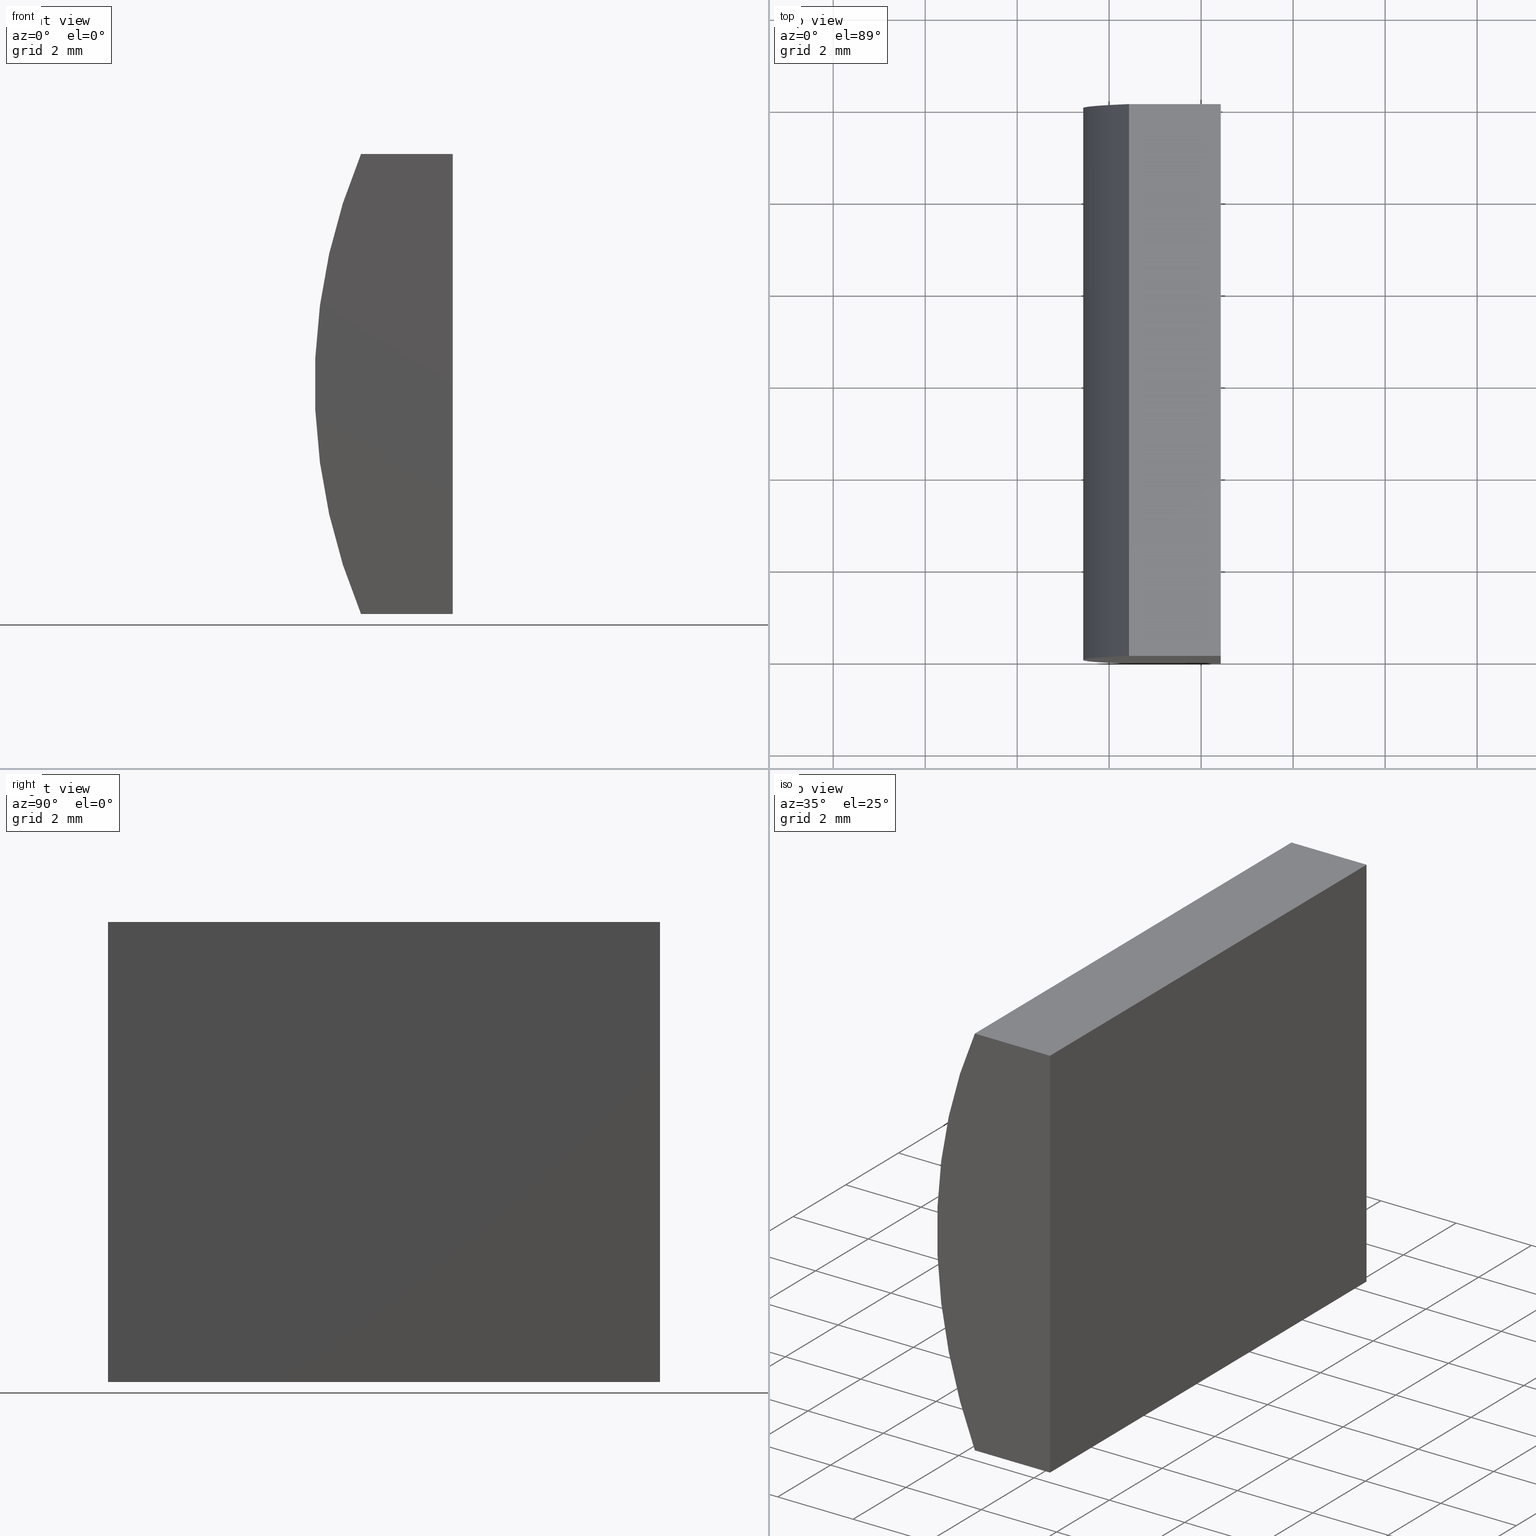
[diagram: canonical four-view strip — front | top / right | iso, engineering-drawing reading convention]
A machine part, canonical four-view strip (front | top / right | iso — engineering-drawing reading convention). The complete STEP part file that produces these views, byte-faithful:
ISO-10303-21;
HEADER;
FILE_DESCRIPTION (( 'STEP AP214' ),
    '1' );
FILE_NAME ('155015.STEP',
    '2019-06-17T02:02:05',
    ( 'user' ),
    ( '΢���й�' ),
    'SwSTEP 2.0',
    'SolidWorks 2016',
    '' );
FILE_SCHEMA (( 'AUTOMOTIVE_DESIGN' ));
ENDSEC;

DATA;
#1 = ORIENTED_EDGE ( 'NONE', *, *, #202, .T. ) ;
#2 = CARTESIAN_POINT ( 'NONE',  ( -5.574795665148736900, 12.00000000000000000, -5.000000000000001800 ) ) ;
#3 = DIRECTION ( 'NONE',  ( -1.000000000000000000, -0.0000000000000000000, 8.699145040184285100E-016 ) ) ;
#4 = DIRECTION ( 'NONE',  ( 0.0000000000000000000, 1.000000000000000000, 0.0000000000000000000 ) ) ;
#5 = DIRECTION ( 'NONE',  ( 0.0000000000000000000, 1.000000000000000000, 0.0000000000000000000 ) ) ;
#6 = LINE ( 'NONE', #69, #27 ) ;
#7 = ADVANCED_FACE ( 'NONE', ( #66 ), #192, .T. ) ;
#8 = CARTESIAN_POINT ( 'NONE',  ( -5.574795665148736900, 0.0000000000000000000, -5.000000000000001800 ) ) ;
#9 = EDGE_LOOP ( 'NONE', ( #55, #1, #45, #79 ) ) ;
#10 = ORIENTED_EDGE ( 'NONE', *, *, #17, .F. ) ;
#11 = AXIS2_PLACEMENT_3D ( 'NONE', #204, #149, #57 ) ;
#12 = ORIENTED_EDGE ( 'NONE', *, *, #118, .T. ) ;
#13 = EDGE_CURVE ( 'NONE', #37, #170, #199, .T. ) ;
#14 = LINE ( 'NONE', #136, #195 ) ;
#15 = CARTESIAN_POINT ( 'NONE',  ( -7.568926660739147200, 12.00000000000000000, -5.000000000000000000 ) ) ;
#16 = MECHANICAL_DESIGN_GEOMETRIC_PRESENTATION_REPRESENTATION (  '', ( #39 ), #191 ) ;
#17 = EDGE_CURVE ( 'NONE', #164, #147, #104, .T. ) ;
#18 = COLOUR_RGB ( '',1.000000000000000000, 1.000000000000000000, 1.000000000000000000 ) ;
#19 = VECTOR ( 'NONE', #152, 1000.000000000000000 ) ;
#20 = DIRECTION ( 'NONE',  ( -3.469446951953613700E-016, -0.0000000000000000000, -1.000000000000000000 ) ) ;
#21 = PRODUCT_DEFINITION_FORMATION_WITH_SPECIFIED_SOURCE ( '�κ�', '', #145, .NOT_KNOWN. ) ;
#22 = DIRECTION ( 'NONE',  ( 3.469446951953613700E-016, 0.0000000000000000000, 1.000000000000000000 ) ) ;
#23 = CARTESIAN_POINT ( 'NONE',  ( -5.574795665148736900, 12.00000000000000000, -5.000000000000001800 ) ) ;
#24 = LINE ( 'NONE', #43, #133 ) ;
#25 = ADVANCED_FACE ( 'NONE', ( #94 ), #203, .F. ) ;
#26 = EDGE_CURVE ( 'NONE', #142, #196, #24, .T. ) ;
#27 = VECTOR ( 'NONE', #3, 1000.000000000000000 ) ;
#28 = EDGE_CURVE ( 'NONE', #178, #196, #48, .T. ) ;
#29 = DIRECTION ( 'NONE',  ( -3.469446951953613700E-016, -0.0000000000000000000, -1.000000000000000000 ) ) ;
#30 = ORIENTED_EDGE ( 'NONE', *, *, #26, .T. ) ;
#31 = CARTESIAN_POINT ( 'NONE',  ( -5.574795665148733400, 12.00000000000000000, 5.000000000000000000 ) ) ;
#32 = LINE ( 'NONE', #89, #139 ) ;
#33 = PLANE ( 'NONE',  #120 ) ;
#34 = PRODUCT_DEFINITION_CONTEXT ( 'detailed design', #56, 'design' ) ;
#35 = DIRECTION ( 'NONE',  ( 0.0000000000000000000, 0.0000000000000000000, 1.000000000000000000 ) ) ;
#36 = UNCERTAINTY_MEASURE_WITH_UNIT (LENGTH_MEASURE( 1.000000000000000100E-005 ), #46, 'distance_accuracy_value', 'NONE');
#37 = VERTEX_POINT ( 'NONE', #111 ) ;
#38 = DIRECTION ( 'NONE',  ( 1.000000000000000000, 0.0000000000000000000, 0.0000000000000000000 ) ) ;
#39 = STYLED_ITEM ( 'NONE', ( #119 ), #197 ) ;
#40 = DIRECTION ( 'NONE',  ( -1.000000000000000000, 0.0000000000000000000, -0.0000000000000000000 ) ) ;
#41 = CARTESIAN_POINT ( 'NONE',  ( -7.568926660739147200, 12.00000000000000000, 5.000000000000000000 ) ) ;
#42 = VECTOR ( 'NONE', #100, 1000.000000000000000 ) ;
#43 = CARTESIAN_POINT ( 'NONE',  ( -5.574795665148733400, 12.00000000000000000, 5.000000000000000000 ) ) ;
#44 = DIRECTION ( 'NONE',  ( 1.000000000000000000, 0.0000000000000000000, 0.0000000000000000000 ) ) ;
#45 = ORIENTED_EDGE ( 'NONE', *, *, #156, .T. ) ;
#46 =( LENGTH_UNIT ( ) NAMED_UNIT ( * ) SI_UNIT ( .MILLI., .METRE. ) );
#47 = DIRECTION ( 'NONE',  ( 1.000000000000000000, 0.0000000000000000000, 0.0000000000000000000 ) ) ;
#48 = LINE ( 'NONE', #73, #124 ) ;
#49 = CIRCLE ( 'NONE', #190, 12.93000000000000100 ) ;
#50 = AXIS2_PLACEMENT_3D ( 'NONE', #173, #82, #44 ) ;
#51 =( NAMED_UNIT ( * ) SI_UNIT ( $, .STERADIAN. ) SOLID_ANGLE_UNIT ( ) );
#52 = VECTOR ( 'NONE', #67, 1000.000000000000000 ) ;
#53 = EDGE_LOOP ( 'NONE', ( #174, #64, #101, #102 ) ) ;
#54 =( NAMED_UNIT ( * ) PLANE_ANGLE_UNIT ( ) SI_UNIT ( $, .RADIAN. ) );
#55 = ORIENTED_EDGE ( 'NONE', *, *, #13, .T. ) ;
#56 = APPLICATION_CONTEXT ( 'automotive_design' ) ;
#57 = DIRECTION ( 'NONE',  ( 0.0000000000000000000, 0.0000000000000000000, -1.000000000000000000 ) ) ;
#58 = CARTESIAN_POINT ( 'NONE',  ( 4.355204334851265500, 12.00000000000000000, 4.286263797015675000E-017 ) ) ;
#59 = ORIENTED_EDGE ( 'NONE', *, *, #172, .T. ) ;
#60 = DIRECTION ( 'NONE',  ( -1.000000000000000000, 0.0000000000000000000, 3.469446951953613700E-016 ) ) ;
#61 = SURFACE_STYLE_USAGE ( .BOTH. , #183 ) ;
#62 = SURFACE_STYLE_FILL_AREA ( #168 ) ;
#63 =( GEOMETRIC_REPRESENTATION_CONTEXT ( 3 ) GLOBAL_UNCERTAINTY_ASSIGNED_CONTEXT ( ( #98 ) ) GLOBAL_UNIT_ASSIGNED_CONTEXT ( ( #185, #83, #96 ) ) REPRESENTATION_CONTEXT ( 'NONE', 'WORKASPACE' ) );
#64 = ORIENTED_EDGE ( 'NONE', *, *, #172, .F. ) ;
#65 = ORIENTED_EDGE ( 'NONE', *, *, #118, .F. ) ;
#66 = FACE_OUTER_BOUND ( 'NONE', #9, .T. ) ;
#67 = DIRECTION ( 'NONE',  ( -1.000000000000000000, -0.0000000000000000000, 8.699145040184285100E-016 ) ) ;
#68 = AXIS2_PLACEMENT_3D ( 'NONE', #155, #60, #22 ) ;
#69 = CARTESIAN_POINT ( 'NONE',  ( -7.568926660739147200, 12.00000000000000000, -5.000000000000000000 ) ) ;
#70 = EDGE_LOOP ( 'NONE', ( #12, #10, #97, #30 ) ) ;
#71 = PLANE ( 'NONE',  #184 ) ;
#72 = PRODUCT_RELATED_PRODUCT_CATEGORY ( 'part', '', ( #145 ) ) ;
#73 = CARTESIAN_POINT ( 'NONE',  ( -7.568926660739147200, 0.0000000000000000000, 5.000000000000000000 ) ) ;
#74 = FACE_OUTER_BOUND ( 'NONE', #110, .T. ) ;
#75 = FILL_AREA_STYLE ('',( #103 ) ) ;
#76 = APPLICATION_PROTOCOL_DEFINITION ( 'draft international standard', 'automotive_design', 1998, #200 ) ;
#77 = DIRECTION ( 'NONE',  ( 0.0000000000000000000, 1.000000000000000000, 0.0000000000000000000 ) ) ;
#78 = MECHANICAL_DESIGN_GEOMETRIC_PRESENTATION_REPRESENTATION (  '', ( #150 ), #93 ) ;
#79 = ORIENTED_EDGE ( 'NONE', *, *, #160, .T. ) ;
#80 = SHAPE_DEFINITION_REPRESENTATION ( #87, #197 ) ;
#81 = CARTESIAN_POINT ( 'NONE',  ( -7.568926660739147200, 0.0000000000000000000, 5.000000000000000000 ) ) ;
#82 = DIRECTION ( 'NONE',  ( 0.0000000000000000000, 0.0000000000000000000, 1.000000000000000000 ) ) ;
#83 =( NAMED_UNIT ( * ) PLANE_ANGLE_UNIT ( ) SI_UNIT ( $, .RADIAN. ) );
#84 = ORIENTED_EDGE ( 'NONE', *, *, #135, .F. ) ;
#85 = AXIS2_PLACEMENT_3D ( 'NONE', #58, #5, #35 ) ;
#86 = PRODUCT_DEFINITION ( 'δ֪', '', #21, #34 ) ;
#87 = PRODUCT_DEFINITION_SHAPE ( 'NONE', 'NONE',  #86 ) ;
#88 = CLOSED_SHELL ( 'NONE', ( #162, #131, #25, #194, #7, #166 ) ) ;
#89 = CARTESIAN_POINT ( 'NONE',  ( -7.568926660739147200, 12.00000000000000000, 5.000000000000000000 ) ) ;
#90 = COLOUR_RGB ( '',1.000000000000000000, 1.000000000000000000, 1.000000000000000000 ) ;
#91 = PRESENTATION_LAYER_ASSIGNMENT (  '', '', ( #39 ) ) ;
#92 = DIRECTION ( 'NONE',  ( 0.0000000000000000000, -0.0000000000000000000, 1.000000000000000000 ) ) ;
#93 =( GEOMETRIC_REPRESENTATION_CONTEXT ( 3 ) GLOBAL_UNCERTAINTY_ASSIGNED_CONTEXT ( ( #148 ) ) GLOBAL_UNIT_ASSIGNED_CONTEXT ( ( #138, #54, #99 ) ) REPRESENTATION_CONTEXT ( 'NONE', 'WORKASPACE' ) );
#94 = FACE_OUTER_BOUND ( 'NONE', #70, .T. ) ;
#95 = DIRECTION ( 'NONE',  ( 0.0000000000000000000, -0.0000000000000000000, 1.000000000000000000 ) ) ;
#96 =( NAMED_UNIT ( * ) SI_UNIT ( $, .STERADIAN. ) SOLID_ANGLE_UNIT ( ) );
#97 = ORIENTED_EDGE ( 'NONE', *, *, #156, .F. ) ;
#98 = UNCERTAINTY_MEASURE_WITH_UNIT (LENGTH_MEASURE( 1.000000000000000100E-005 ), #185, 'distance_accuracy_value', 'NONE');
#99 =( NAMED_UNIT ( * ) SI_UNIT ( $, .STERADIAN. ) SOLID_ANGLE_UNIT ( ) );
#100 = DIRECTION ( 'NONE',  ( -0.0000000000000000000, -1.000000000000000000, -0.0000000000000000000 ) ) ;
#101 = ORIENTED_EDGE ( 'NONE', *, *, #160, .F. ) ;
#102 = ORIENTED_EDGE ( 'NONE', *, *, #17, .T. ) ;
#103 = FILL_AREA_STYLE_COLOUR ( '', #18 ) ;
#104 = LINE ( 'NONE', #2, #42 ) ;
#105 =( NAMED_UNIT ( * ) PLANE_ANGLE_UNIT ( ) SI_UNIT ( $, .RADIAN. ) );
#106 = DIRECTION ( 'NONE',  ( 0.0000000000000000000, 1.000000000000000000, 0.0000000000000000000 ) ) ;
#107 = VERTEX_POINT ( 'NONE', #114 ) ;
#108 = DIRECTION ( 'NONE',  ( -0.0000000000000000000, -1.000000000000000000, -0.0000000000000000000 ) ) ;
#109 = PLANE ( 'NONE',  #188 ) ;
#110 = EDGE_LOOP ( 'NONE', ( #153, #151, #154, #140 ) ) ;
#111 = CARTESIAN_POINT ( 'NONE',  ( -7.568926660739147200, 12.00000000000000000, -5.000000000000000000 ) ) ;
#112 = CARTESIAN_POINT ( 'NONE',  ( 4.355204334851265500, 0.0000000000000000000, 4.286263797015675000E-017 ) ) ;
#113 = LINE ( 'NONE', #23, #130 ) ;
#114 = CARTESIAN_POINT ( 'NONE',  ( -7.568926660739147200, 0.0000000000000000000, -5.000000000000000000 ) ) ;
#115 = FACE_OUTER_BOUND ( 'NONE', #157, .T. ) ;
#116 = ORIENTED_EDGE ( 'NONE', *, *, #167, .F. ) ;
#117 = DIRECTION ( 'NONE',  ( -0.0000000000000000000, -1.000000000000000000, -0.0000000000000000000 ) ) ;
#118 = EDGE_CURVE ( 'NONE', #196, #147, #146, .T. ) ;
#119 = PRESENTATION_STYLE_ASSIGNMENT (( #61 ) ) ;
#120 = AXIS2_PLACEMENT_3D ( 'NONE', #41, #129, #40 ) ;
#121 = VECTOR ( 'NONE', #20, 1000.000000000000000 ) ;
#122 = APPLICATION_PROTOCOL_DEFINITION ( 'draft international standard', 'automotive_design', 1998, #56 ) ;
#123 = PRODUCT_CONTEXT ( 'NONE', #200, 'mechanical' ) ;
#124 = VECTOR ( 'NONE', #38, 1000.000000000000000 ) ;
#125 = EDGE_LOOP ( 'NONE', ( #137, #116, #128, #59 ) ) ;
#126 = CARTESIAN_POINT ( 'NONE',  ( -5.574795665148733400, 0.0000000000000000000, 5.000000000000000000 ) ) ;
#127 = SURFACE_SIDE_STYLE ('',( #62 ) ) ;
#128 = ORIENTED_EDGE ( 'NONE', *, *, #13, .F. ) ;
#129 = DIRECTION ( 'NONE',  ( 0.0000000000000000000, 0.0000000000000000000, -1.000000000000000000 ) ) ;
#130 = VECTOR ( 'NONE', #29, 1000.000000000000000 ) ;
#131 = ADVANCED_FACE ( 'NONE', ( #74 ), #33, .F. ) ;
#132 = DIRECTION ( 'NONE',  ( 0.0000000000000000000, 0.0000000000000000000, 1.000000000000000000 ) ) ;
#133 = VECTOR ( 'NONE', #108, 1000.000000000000000 ) ;
#134 = CARTESIAN_POINT ( 'NONE',  ( 4.355204334851265500, 0.0000000000000000000, 4.286263797015675000E-017 ) ) ;
#135 = EDGE_CURVE ( 'NONE', #107, #178, #49, .T. ) ;
#136 = CARTESIAN_POINT ( 'NONE',  ( -7.568926660739147200, 12.00000000000000000, -5.000000000000000000 ) ) ;
#137 = ORIENTED_EDGE ( 'NONE', *, *, #135, .T. ) ;
#138 =( LENGTH_UNIT ( ) NAMED_UNIT ( * ) SI_UNIT ( .MILLI., .METRE. ) );
#139 = VECTOR ( 'NONE', #47, 1000.000000000000000 ) ;
#140 = ORIENTED_EDGE ( 'NONE', *, *, #167, .T. ) ;
#141 = CARTESIAN_POINT ( 'NONE',  ( -5.574795665148736900, 12.00000000000000000, -5.000000000000001800 ) ) ;
#142 = VERTEX_POINT ( 'NONE', #31 ) ;
#143 = CYLINDRICAL_SURFACE ( 'NONE', #11, 12.93000000000000100 ) ;
#144 = PRESENTATION_STYLE_ASSIGNMENT (( #182 ) ) ;
#145 = PRODUCT ( '155015', '155015', '', ( #123 ) ) ;
#146 = LINE ( 'NONE', #8, #121 ) ;
#147 = VERTEX_POINT ( 'NONE', #201 ) ;
#148 = UNCERTAINTY_MEASURE_WITH_UNIT (LENGTH_MEASURE( 1.000000000000000100E-005 ), #138, 'distance_accuracy_value', 'NONE');
#149 = DIRECTION ( 'NONE',  ( -0.0000000000000000000, -1.000000000000000000, -0.0000000000000000000 ) ) ;
#150 = STYLED_ITEM ( 'NONE', ( #144 ), #186 ) ;
#151 = ORIENTED_EDGE ( 'NONE', *, *, #26, .F. ) ;
#152 = DIRECTION ( 'NONE',  ( -0.0000000000000000000, -1.000000000000000000, -0.0000000000000000000 ) ) ;
#153 = ORIENTED_EDGE ( 'NONE', *, *, #28, .T. ) ;
#154 = ORIENTED_EDGE ( 'NONE', *, *, #202, .F. ) ;
#155 = CARTESIAN_POINT ( 'NONE',  ( -5.574795665148736900, 12.00000000000000000, -5.000000000000001800 ) ) ;
#156 = EDGE_CURVE ( 'NONE', #142, #164, #113, .T. ) ;
#157 = EDGE_LOOP ( 'NONE', ( #84, #158, #65, #179 ) ) ;
#158 = ORIENTED_EDGE ( 'NONE', *, *, #198, .F. ) ;
#159 = CARTESIAN_POINT ( 'NONE',  ( 4.355204334851265500, 12.00000000000000000, 4.286263797015675000E-017 ) ) ;
#160 = EDGE_CURVE ( 'NONE', #164, #37, #6, .T. ) ;
#161 = SURFACE_STYLE_FILL_AREA ( #75 ) ;
#162 = ADVANCED_FACE ( 'NONE', ( #176 ), #143, .T. ) ;
#163 = CARTESIAN_POINT ( 'NONE',  ( -7.568926660739147200, 12.00000000000000000, 5.000000000000000000 ) ) ;
#164 = VERTEX_POINT ( 'NONE', #141 ) ;
#165 = LINE ( 'NONE', #163, #19 ) ;
#166 = ADVANCED_FACE ( 'NONE', ( #115 ), #109, .F. ) ;
#167 = EDGE_CURVE ( 'NONE', #170, #178, #165, .T. ) ;
#168 = FILL_AREA_STYLE ('',( #193 ) ) ;
#169 = AXIS2_PLACEMENT_3D ( 'NONE', #159, #106, #92 ) ;
#170 = VERTEX_POINT ( 'NONE', #175 ) ;
#171 = DIRECTION ( 'NONE',  ( 8.699145040184285100E-016, -0.0000000000000000000, 1.000000000000000000 ) ) ;
#172 = EDGE_CURVE ( 'NONE', #37, #107, #14, .T. ) ;
#173 = CARTESIAN_POINT ( 'NONE',  ( 0.0000000000000000000, 0.0000000000000000000, 0.0000000000000000000 ) ) ;
#174 = ORIENTED_EDGE ( 'NONE', *, *, #198, .T. ) ;
#175 = CARTESIAN_POINT ( 'NONE',  ( -7.568926660739147200, 12.00000000000000000, 5.000000000000000000 ) ) ;
#176 = FACE_OUTER_BOUND ( 'NONE', #125, .T. ) ;
#177 = FACE_OUTER_BOUND ( 'NONE', #53, .T. ) ;
#178 = VERTEX_POINT ( 'NONE', #81 ) ;
#179 = ORIENTED_EDGE ( 'NONE', *, *, #28, .F. ) ;
#180 = CARTESIAN_POINT ( 'NONE',  ( -7.568926660739147200, 0.0000000000000000000, -5.000000000000000000 ) ) ;
#181 = PRESENTATION_LAYER_ASSIGNMENT (  '', '', ( #150 ) ) ;
#182 = SURFACE_STYLE_USAGE ( .BOTH. , #127 ) ;
#183 = SURFACE_SIDE_STYLE ('',( #161 ) ) ;
#184 = AXIS2_PLACEMENT_3D ( 'NONE', #15, #171, #187 ) ;
#185 =( LENGTH_UNIT ( ) NAMED_UNIT ( * ) SI_UNIT ( .MILLI., .METRE. ) );
#186 = MANIFOLD_SOLID_BREP ( '͹̨-����1', #88 ) ;
#187 = DIRECTION ( 'NONE',  ( 1.000000000000000000, 0.0000000000000000000, -8.699145040184285100E-016 ) ) ;
#188 = AXIS2_PLACEMENT_3D ( 'NONE', #134, #4, #95 ) ;
#189 = LINE ( 'NONE', #180, #52 ) ;
#190 = AXIS2_PLACEMENT_3D ( 'NONE', #112, #77, #132 ) ;
#191 =( GEOMETRIC_REPRESENTATION_CONTEXT ( 3 ) GLOBAL_UNCERTAINTY_ASSIGNED_CONTEXT ( ( #36 ) ) GLOBAL_UNIT_ASSIGNED_CONTEXT ( ( #46, #105, #51 ) ) REPRESENTATION_CONTEXT ( 'NONE', 'WORKASPACE' ) );
#192 = PLANE ( 'NONE',  #169 ) ;
#193 = FILL_AREA_STYLE_COLOUR ( '', #90 ) ;
#194 = ADVANCED_FACE ( 'NONE', ( #177 ), #71, .F. ) ;
#195 = VECTOR ( 'NONE', #117, 1000.000000000000000 ) ;
#196 = VERTEX_POINT ( 'NONE', #126 ) ;
#197 = ADVANCED_BREP_SHAPE_REPRESENTATION ( '155015', ( #186, #50 ), #63 ) ;
#198 = EDGE_CURVE ( 'NONE', #147, #107, #189, .T. ) ;
#199 = CIRCLE ( 'NONE', #85, 12.93000000000000100 ) ;
#200 = APPLICATION_CONTEXT ( 'automotive_design' ) ;
#201 = CARTESIAN_POINT ( 'NONE',  ( -5.574795665148736900, 0.0000000000000000000, -5.000000000000001800 ) ) ;
#202 = EDGE_CURVE ( 'NONE', #170, #142, #32, .T. ) ;
#203 = PLANE ( 'NONE',  #68 ) ;
#204 = CARTESIAN_POINT ( 'NONE',  ( 4.355204334851265500, 12.00000000000000000, 4.286263797015675000E-017 ) ) ;
ENDSEC;
END-ISO-10303-21;
